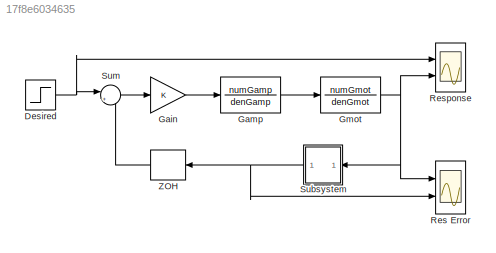
MODEL slx_17f8e6034635
KIND model
CONFIG AbsTol = auto
CONFIG EnableMultiTasking = off
CONFIG FixedStep = auto
CONFIG MaxStep = auto
CONFIG MinStep = auto
CONFIG RelTol = 1e-3
CONFIG SampleTimeConstraint = Unconstrained
CONFIG SolverName = VariableStepAuto
CONFIG StartTime = 0.0
CONFIG StopTime = simTime
BLOCK [Step] Desired
  After = ipMag
  SampleTime = 0
  Time = 0
BLOCK [Gain] Gain
  Gain = K
BLOCK [TransferFcn] Gamp
  Denominator = denGamp
  Numerator = numGamp
BLOCK [TransferFcn] Gmot
  Denominator = denGmot
  Numerator = numGmot
BLOCK [Scope] Res Error
  Floating = off
  NumInputPorts = 2
  Ports = [2]
  ScopeSpecificationString = Simulink.scopes.TimeScopeBlockCfg('CurrentConfiguration', extmgr.ConfigurationSet(extmgr.Configuration('Core','General UI',true,'FigureColor',[1 1 1]),extmgr.Configuration('Core','Source UI',true),extmgr.Configuration('Sources','WiredSimulink',true,'DataLoggingVariableName','ScopeData1'),extmgr.Configuration('Visuals','Time Domain',true,'SerializedDisplays',{struct('MinYLimReal','-0.08105','MaxYLi...<+1745ch>
BLOCK [Scope] Response
  Floating = off
  NumInputPorts = 2
  Ports = [2]
  ScopeSpecificationString = Simulink.scopes.TimeScopeBlockCfg('CurrentConfiguration', extmgr.ConfigurationSet(extmgr.Configuration('Core','General UI',true,'FigureColor',[1 1 1]),extmgr.Configuration('Core','Source UI',true),extmgr.Configuration('Sources','WiredSimulink',true),extmgr.Configuration('Visuals','Time Domain',true,'SerializedDisplays',{struct('MinYLimReal','0.00000','MaxYLimReal','0.81675','YLabelReal','','MinYLi...<+1707ch>
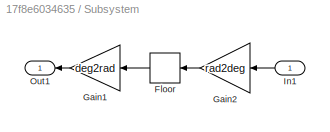
BLOCK [SubSystem] Subsystem
  NameLocation = top
  Ports = [1, 1]
  RequestExecContextInheritance = off
BLOCK [Rounding] Subsystem/Floor
  NameLocation = top
BLOCK [Gain] Subsystem/Gain1
  Gain = deg2rad
  NameLocation = top
BLOCK [Gain] Subsystem/Gain2
  Gain = rad2deg
  NameLocation = top
BLOCK [Inport] Subsystem/In1
BLOCK [Outport] Subsystem/Out1
BLOCK [Sum] Sum
  Inputs = |+-
  Ports = [2, 1]
BLOCK [ZeroOrderHold] ZOH
  SampleTime = ZOH
NET Desired:1 -> Response:1, Sum:1
LINE Gain:1 -> Gamp:1
LINE Gamp:1 -> Gmot:1
NET Gmot:1 -> Res Error:1, Response:2, Subsystem:1
LINE Subsystem/Floor:1 -> Subsystem/Gain1:1
LINE Subsystem/Gain1:1 -> Subsystem/Out1:1
LINE Subsystem/Gain2:1 -> Subsystem/Floor:1
LINE Subsystem/In1:1 -> Subsystem/Gain2:1
NET Subsystem:1 -> Res Error:2, ZOH:1
LINE Sum:1 -> Gain:1
LINE ZOH:1 -> Sum:2
note: NET lines group one-source signal fan-out (src -> all destinations, sorted); 1:1 wires keep LINE
